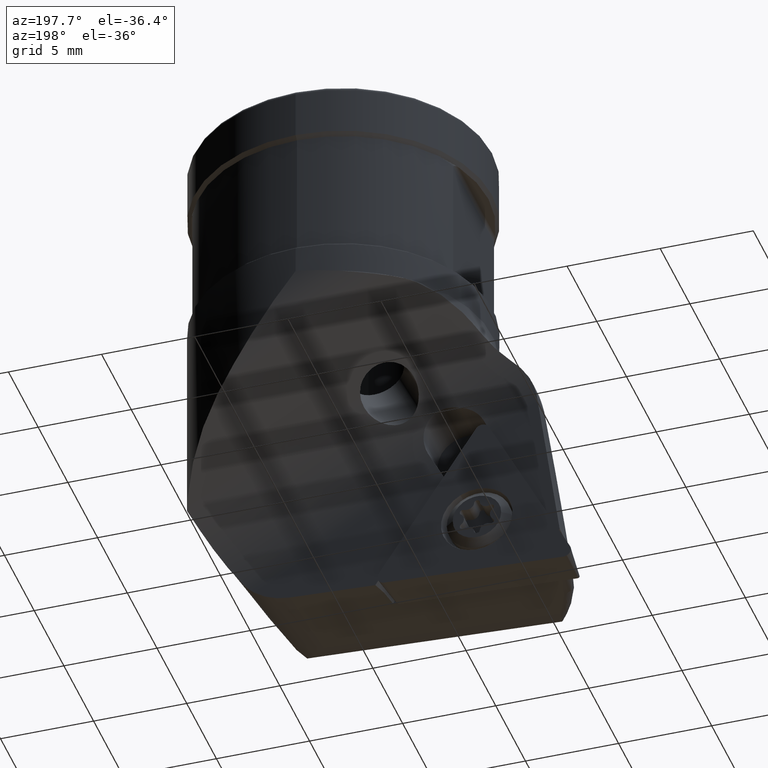
[diagram: clean part render]
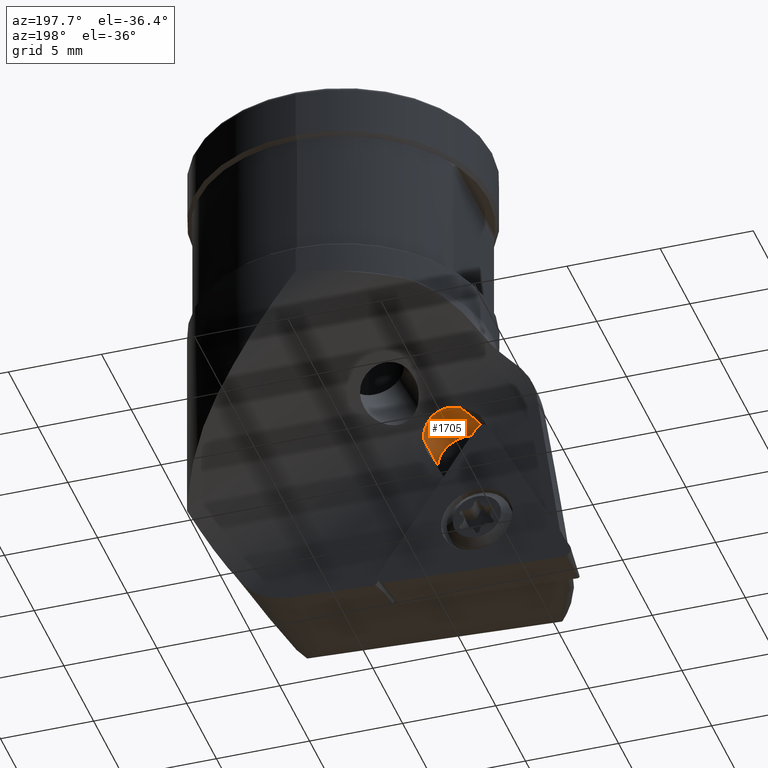
[diagram: same view with one face highlighted and labeled with its STEP entity id]
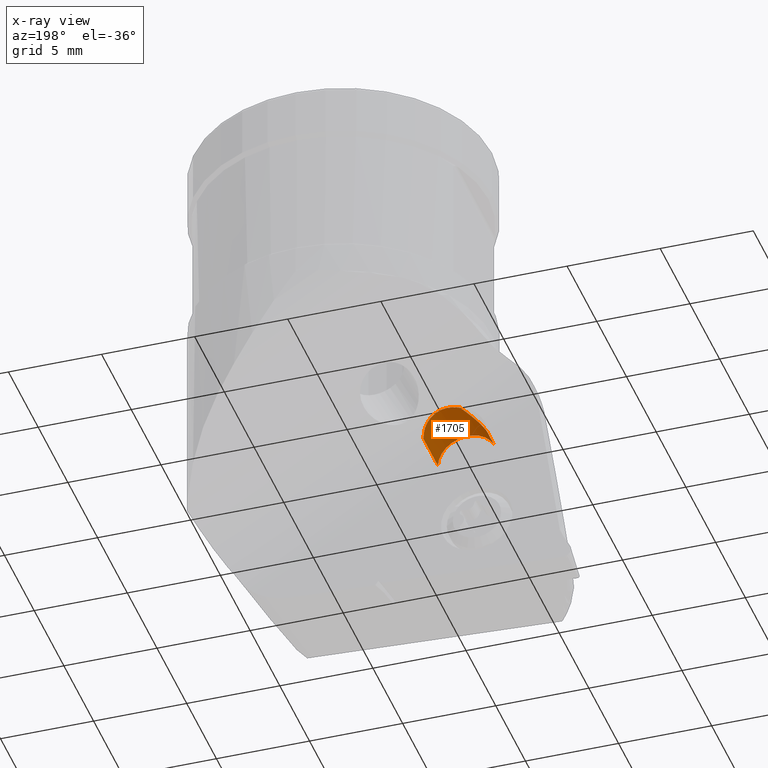
[diagram: x-ray of the same camera — body ghosted, the highlighted face saturated]
A machine part, auxiliary view. The second image highlights one B-rep face of the part: STEP entity #1705.
The next image is the same camera in x-ray: the body ghosted, the highlighted face saturated — about 0% of this face is hidden behind the body in this view.
In plain terms, the highlighted cylindrical surface (edge-blend (fillet) strip) has radius 1.6 mm, axis along (0, -1, -0).
Its self-contained STEP definition (entity closure, byte-faithful):
#751=EDGE_CURVE('NONE',#1311,#929,#2084,.T.);
#805=VERTEX_POINT('NONE',#2139);
#929=VERTEX_POINT('NONE',#2272);
#1075=EDGE_CURVE('NONE',#1269,#805,#2434,.F.);
#1269=VERTEX_POINT('NONE',#2657);
#1281=VERTEX_POINT('NONE',#2669);
#1311=VERTEX_POINT('NONE',#2701);
#1449=EDGE_CURVE('NONE',#1311,#1281,#2858,.F.);
#1607=EDGE_CURVE('NONE',#1281,#1269,#3030,.F.);
#1645=EDGE_CURVE('NONE',#805,#929,#3071,.F.);
#1705=ADVANCED_FACE('NONE',(#3137),#3138,.F.);
#2084=LINE('',#3571,#3572);
#2139=CARTESIAN_POINT('',(-7.49743961622723,-1.9,-17.2175425883168));
#2272=CARTESIAN_POINT('',(-4.47402192191853,-1.9,-17.8601898579114));
#2434=LINE('',#4685,#4686);
#2657=CARTESIAN_POINT('',(-7.49743961622723,-0.700000000000034,-17.2175425883168));
#2669=CARTESIAN_POINT('',(-6.47498198113512,0.603655340455308,-16.3955515236662));
#2701=CARTESIAN_POINT('',(-4.47402192191853,0.507315282375006,-17.8601898579114));
#2858=B_SPLINE_CURVE_WITH_KNOTS('',3,(#5511,#5512,#5513,#5514,#5515,#5516,#5517,#5518,#5519,#5520,#5521,#5522,#5523,#5524,#5525,#5526,#5527,#5528,#5529,#5530,#5531,#5532,#5533,#5534,#5535,#5536,#5537,#5538,#5539,#5540,#5541,#5542,#5543,#5544,#5545,#5546,#5547,#5548,#5549,#5550,#5551,#5552,#5553,#5554,#5555,#5556,#5557,#5558),.UNSPECIFIED.,.F.,.F.,(4,2,2,2,2,2,2,2,2,2,2,2,2,2,2,2,2,2,2,2,2,2,2,4),(0.301476366682012,0.602952733364024,0.904429100046036,1.20590546672805,1.50874844885176,1.81159143097547,2.11443441309918,2.41727739522289,2.72778498514967,3.03829257507645,3.65930775493001,3.96627388277285,4.27324001061568,4.58020613845852,4.88717226630135,5.19091092665061,5.49464958699986,5.79838824734911,6.10212690769836,6.72957340321559,7.04329665097421,7.35701989873283,7.65921211548819,7.96140433224355),.UNSPECIFIED.);
#3030=B_SPLINE_CURVE_WITH_KNOTS('',3,(#5810,#5811,#5812,#5813,#5814,#5815,#5816,#5817,#5818,#5819,#5820,#5821,#5822,#5823,#5824,#5825,#5826,#5827,#5828,#5829,#5830,#5831,#5832,#5833,#5834,#5835,#5836,#5837),.UNSPECIFIED.,.F.,.F.,(4,2,2,2,2,2,2,2,2,2,2,2,2,4),(1.80932606566972,2.71398909850458,3.16632061492201,3.61865213133944,4.01311567044254,4.2103474399941,4.40757920954565,4.6334097672422,4.85924032493876,5.31090144033187,5.73176468040463,6.1526279204774,6.99435440062292,8.67780736091396),.UNSPECIFIED.);
#3071=CIRCLE('',#5963,1.6);
#3137=FACE_OUTER_BOUND('',#6056,.T.);
#3138=CYLINDRICAL_SURFACE('',#6057,1.6);
#3571=CARTESIAN_POINT('',(-4.47402192191853,10.0928247692015,-17.8601898579114));
#3572=VECTOR('',#6824,1000.0);
#4685=CARTESIAN_POINT('',(-7.49743961622724,10.0928247692015,-17.2175425883168));
#4686=VECTOR('',#7203,1.0);
#5511=CARTESIAN_POINT('',(-7.12338701106264,0.224889322293468,-19.1498403709662));
#5512=CARTESIAN_POINT('',(-7.2027446852687,0.223039082350031,-19.0806403664006));
#5513=CARTESIAN_POINT('',(-7.27629479727255,0.220298620849141,-19.0025289020081));
#5514=CARTESIAN_POINT('',(-7.406141725599,0.214103946786508,-18.8333005693674));
#5515=CARTESIAN_POINT('',(-7.46254294400334,0.210663420073501,-18.7420488079006));
#5516=CARTESIAN_POINT('',(-7.55512759539333,0.204711198083098,-18.5529498710725));
#5517=CARTESIAN_POINT('',(-7.59130329986134,0.202226889553208,-18.455098050808));
#5518=CARTESIAN_POINT('',(-7.64343559194203,0.199682186417279,-18.2605376880478));
#5519=CARTESIAN_POINT('',(-7.66106801145248,0.199525627874654,-18.1572102672601));
#5520=CARTESIAN_POINT('',(-7.67531411487723,0.203405998288935,-17.9463176879489));
#5521=CARTESIAN_POINT('',(-7.67193625811717,0.207468869143737,-17.8387535790736));
#5522=CARTESIAN_POINT('',(-7.64376610822437,0.221122344962179,-17.6270386534463));
#5523=CARTESIAN_POINT('',(-7.61894958962315,0.230743598829903,-17.5226991858755));
#5524=CARTESIAN_POINT('',(-7.55066941929155,0.255592938247321,-17.3242126898226));
#5525=CARTESIAN_POINT('',(-7.50720286881024,0.270828136357519,-17.2300675490524));
#5526=CARTESIAN_POINT('',(-7.4064780921379,0.305727390328725,-17.0556071182748));
#5527=CARTESIAN_POINT('',(-7.34547958938743,0.326677004554983,-16.9697560042291));
#5528=CARTESIAN_POINT('',(-7.20610590291837,0.374046235447915,-16.8105203266075));
#5529=CARTESIAN_POINT('',(-7.12774273974697,0.400460500719784,-16.7371236504229));
#5530=CARTESIAN_POINT('',(-6.87400792209339,0.48419136124759,-16.5432761150273));
#5531=CARTESIAN_POINT('',(-6.67887104464361,0.546204498597052,-16.4501418773101));
#5532=CARTESIAN_POINT('',(-6.39057418171174,0.627449688370581,-16.372892965707));
#5533=CARTESIAN_POINT('',(-6.28912698849991,0.654378449659114,-16.3553210708885));
#5534=CARTESIAN_POINT('',(-6.08095537980856,0.704122610725171,-16.3405543556332));
#5535=CARTESIAN_POINT('',(-5.97422443745478,0.726908539386542,-16.3433522847615));
#5536=CARTESIAN_POINT('',(-5.76271951875802,0.764627176382269,-16.3704540670574));
#5537=CARTESIAN_POINT('',(-5.65775039912892,0.779563455021031,-16.3947920516531));
#5538=CARTESIAN_POINT('',(-5.45661052144639,0.799406193920036,-16.4631210099585));
#5539=CARTESIAN_POINT('',(-5.36044266579693,0.80429476521264,-16.5071257205379));
#5540=CARTESIAN_POINT('',(-5.18414737886788,0.804294765212641,-16.6089098519032));
#5541=CARTESIAN_POINT('',(-5.09876847298519,0.799508812681997,-16.6694809686997));
#5542=CARTESIAN_POINT('',(-4.94031901183643,0.780052041518322,-16.8078175534157));
#5543=CARTESIAN_POINT('',(-4.86723846779082,0.765398261021231,-16.885573975806));
#5544=CARTESIAN_POINT('',(-4.73859318894306,0.728347596433433,-17.0530666893058));
#5545=CARTESIAN_POINT('',(-4.68290378945947,0.705947227726645,-17.1429507539513));
#5546=CARTESIAN_POINT('',(-4.59141411722864,0.656985358124675,-17.328258197592));
#5547=CARTESIAN_POINT('',(-4.55561637168124,0.630452572305382,-17.4236904101733));
#5548=CARTESIAN_POINT('',(-4.47584812361758,0.549166304911816,-17.712437111648));
#5549=CARTESIAN_POINT('',(-4.45752101935023,0.486469915536618,-17.9300474410442));
#5550=CARTESIAN_POINT('',(-4.49768425877479,0.401759370775193,-18.2498909103867));
#5551=CARTESIAN_POINT('',(-4.52199183611485,0.375026222943561,-18.3555321286473));
#5552=CARTESIAN_POINT('',(-4.59047549582131,0.327098900061942,-18.5579351380011));
#5553=CARTESIAN_POINT('',(-4.63466872288597,0.305910359195914,-18.654692461835));
#5554=CARTESIAN_POINT('',(-4.73581470764443,0.270865164489391,-18.8298824464183));
#5555=CARTESIAN_POINT('',(-4.79547066176217,0.255655830832266,-18.9144316762346));
#5556=CARTESIAN_POINT('',(-4.93287874209604,0.230833357763283,-19.072537834468));
#5557=CARTESIAN_POINT('',(-5.01062784072534,0.221213188018686,-19.1460962902729));
#5558=CARTESIAN_POINT('',(-5.09503787936358,0.214378191540649,-19.2111601052155));
#5810=CARTESIAN_POINT('',(-7.4174975312031,1.1776397519876,-18.8094773182401));
#5811=CARTESIAN_POINT('',(-7.4983957585684,0.894649220820736,-18.6837050446947));
#5812=CARTESIAN_POINT('',(-7.56397813159595,0.618147125330458,-18.5440597489734));
#5813=CARTESIAN_POINT('',(-7.63182936365523,0.226409557977222,-18.3087067895103));
#5814=CARTESIAN_POINT('',(-7.64932334003906,0.0998127828864998,-18.225980331481));
#5815=CARTESIAN_POINT('',(-7.67096116077428,-0.142270125746598,-18.0479396331975));
#5816=CARTESIAN_POINT('',(-7.67537413572079,-0.257982999377309,-17.9529667384335));
#5817=CARTESIAN_POINT('',(-7.66314714644809,-0.456947851738482,-17.7531242281138));
#5818=CARTESIAN_POINT('',(-7.64790259789794,-0.549109469014931,-17.6429424028577));
#5819=CARTESIAN_POINT('',(-7.60059549096861,-0.64412552205821,-17.4679825334304));
#5820=CARTESIAN_POINT('',(-7.58075859385503,-0.668695017270958,-17.4079332734004));
#5821=CARTESIAN_POINT('',(-7.53273416443513,-0.698314031459263,-17.288248889078));
#5822=CARTESIAN_POINT('',(-7.50452302696663,-0.703306488398284,-17.2286091230931));
#5823=CARTESIAN_POINT('',(-7.43665987264385,-0.691484196840749,-17.1055575692604));
#5824=CARTESIAN_POINT('',(-7.39712278891775,-0.671829357228824,-17.0448076835863));
#5825=CARTESIAN_POINT('',(-7.31422846582931,-0.612389030093711,-16.9333473313285));
#5826=CARTESIAN_POINT('',(-7.27086601108044,-0.572603035685541,-16.8826410139018));
#5827=CARTESIAN_POINT('',(-7.13928918673928,-0.433756360444048,-16.7453442620669));
#5828=CARTESIAN_POINT('',(-7.04946870152523,-0.315113417278153,-16.673638480273));
#5829=CARTESIAN_POINT('',(-6.89429246973953,-0.0927160395582226,-16.5685266656659));
#5830=CARTESIAN_POINT('',(-6.82085954414611,0.0210433258557028,-16.5278000036118));
#5831=CARTESIAN_POINT('',(-6.6751343549198,0.25715057635855,-16.4598498524636));
#5832=CARTESIAN_POINT('',(-6.6028850197078,0.379565093872829,-16.4327659228293));
#5833=CARTESIAN_POINT('',(-6.38726208302106,0.75606736308092,-16.3681669235189));
#5834=CARTESIAN_POINT('',(-6.24503047285119,1.01918071782343,-16.3472258144885));
#5835=CARTESIAN_POINT('',(-5.82654739308344,1.82039592687481,-16.3383957986276));
#5836=CARTESIAN_POINT('',(-5.55936987508535,2.36869076233518,-16.4064590280151));
#5837=CARTESIAN_POINT('',(-5.33093854635822,2.86715534045528,-16.5258014863497));
#5963=AXIS2_PLACEMENT_3D('',#7994,#7995,#7996);
#6056=EDGE_LOOP('',(#8078,#8079,#8080,#8081,#8082));
#6057=AXIS2_PLACEMENT_3D('',#8083,#8084,#8085);
#6824=DIRECTION('',(0.0,-1.0,0.0));
#7203=DIRECTION('',(0.0,1.0,0.0));
#7994=CARTESIAN_POINT('',(-6.07182917752585,-1.9,-17.9439273879001));
#7995=DIRECTION('',(0.0,-1.0,0.0));
#7996=DIRECTION('',(0.998629534754574,0.0,0.0523359562429369));
#8078=ORIENTED_EDGE('',*,*,#1449,.F.);
#8079=ORIENTED_EDGE('',*,*,#751,.T.);
#8080=ORIENTED_EDGE('',*,*,#1645,.F.);
#8081=ORIENTED_EDGE('',*,*,#1075,.F.);
#8082=ORIENTED_EDGE('',*,*,#1607,.F.);
#8083=CARTESIAN_POINT('',(-6.07182917752585,10.0928247692015,-17.9439273879001));
#8084=DIRECTION('',(0.0,-1.0,-0.0));
#8085=DIRECTION('',(0.998629534754574,0.0,0.0523359562429369));